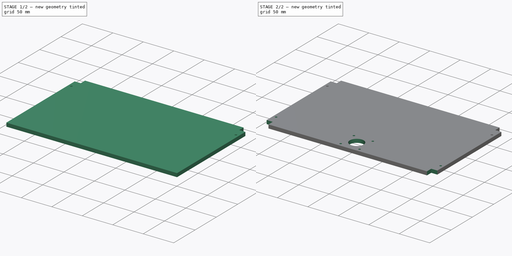
[diagram: build sequence overview — one tinted view per stage of 2, left to right]
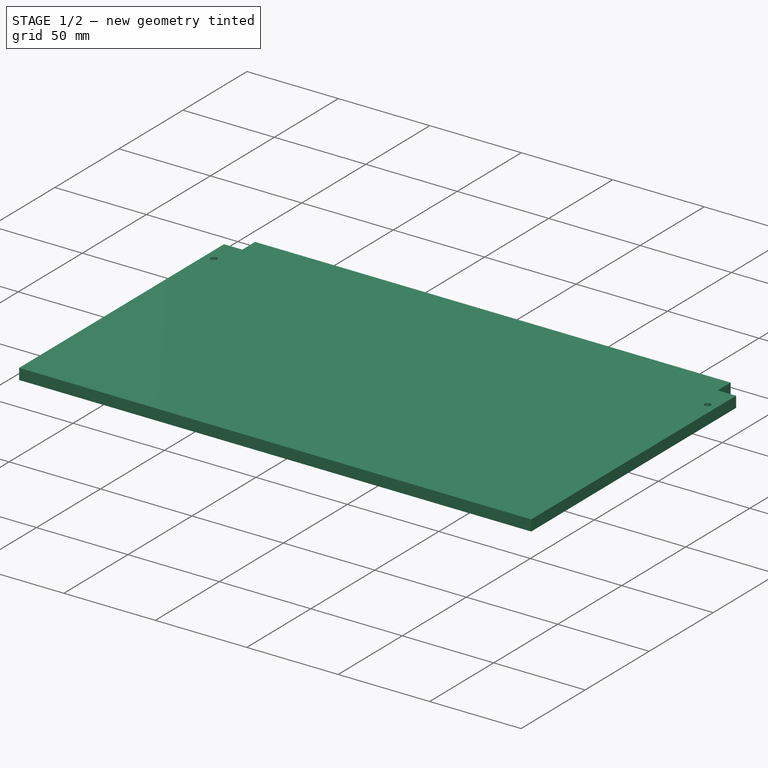
[diagram: stage 1 of 2 — iso view after this stage's code; geometry added in this stage tinted green]
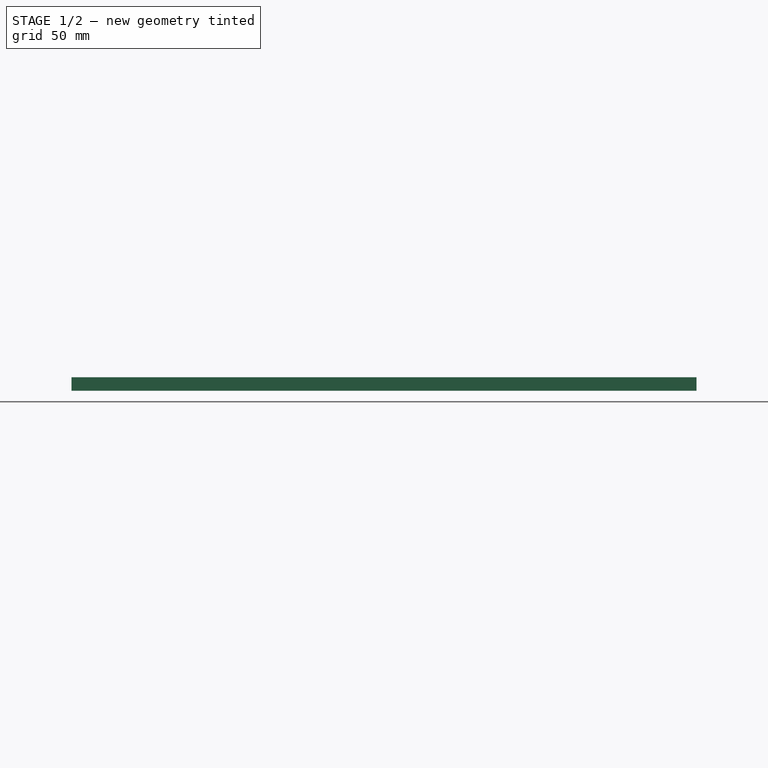
[diagram: stage 1 of 2 — front view after this stage's code; geometry added in this stage tinted green]
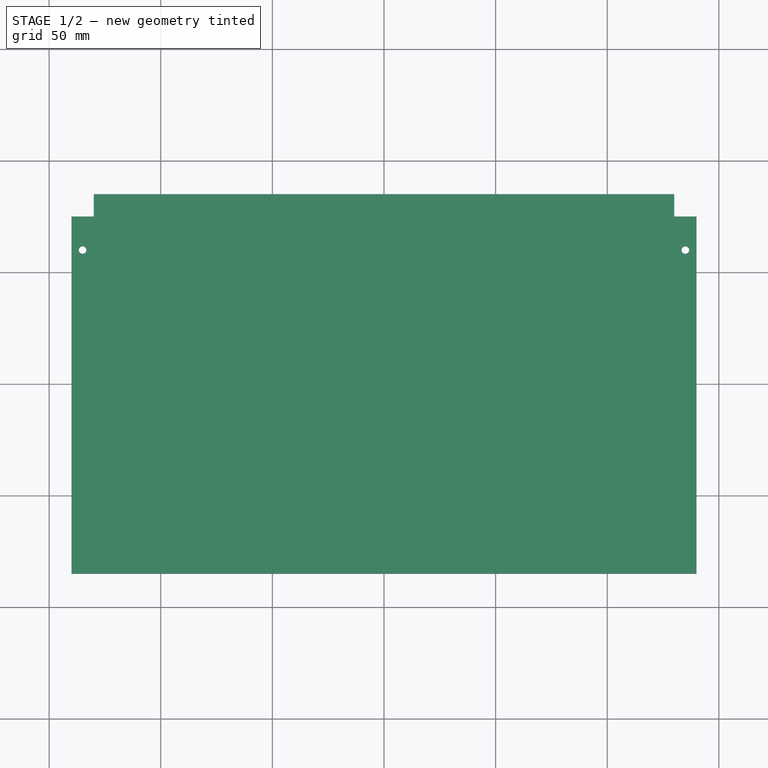
[diagram: stage 1 of 2 — top view after this stage's code; geometry added in this stage tinted green]
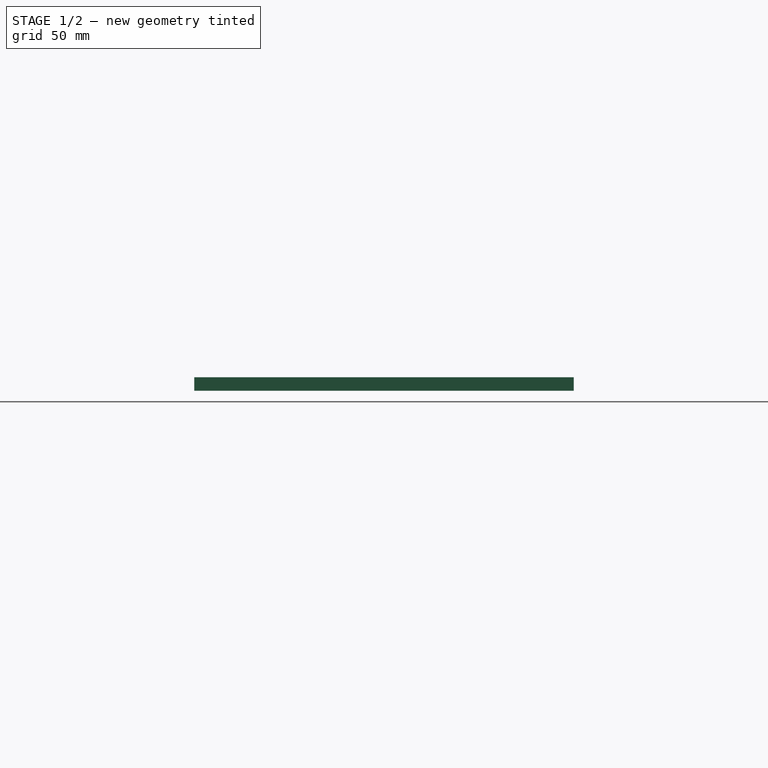
[diagram: stage 1 of 2 — right view after this stage's code; geometry added in this stage tinted green]
FCSTD DOCUMENT  (FreeCAD 0.19R24291 (Git))
Label: Plaque_Mezzanine
License: All rights reserved
LicenseURL: http://en.wikipedia.org/wiki/All_rights_reserved
objects: Sketcher::SketchObject×3, PartDesign::Pocket×2, PartDesign::Pad×1, PartDesign::Mirrored×1, PartDesign::Body×1
note: 11 computed .brp shape members not serialized (recipe doc carries the construction recipe); baked Part::Feature solids carry a one-line shape summary decoded from their .brp

FEATURE [Sketcher::SketchObject] Sketch
  FullyConstrained = true
  MapMode = 5
  Support = -> [XY_Plane]
  sketch-geometry (6):
    g0: LineSegment StartX=-140 StartY=85 StartZ=0 EndX=140 EndY=85 EndZ=0
    g1: LineSegment StartX=140 StartY=85 StartZ=0 EndX=140 EndY=-85 EndZ=0
    g2: LineSegment StartX=140 StartY=-85 StartZ=0 EndX=-140 EndY=-85 EndZ=0
    g3: LineSegment StartX=-140 StartY=-85 StartZ=0 EndX=-140 EndY=85 EndZ=0
    g4: LineSegment StartX=-140 StartY=85 StartZ=0 EndX=140 EndY=-85 EndZ=0
    g5: LineSegment StartX=-140 StartY=-85 StartZ=0 EndX=140 EndY=85 EndZ=0
  constraints (16):
    c: Coincident(g0,g1)
    c: Coincident(g1,g2)
    c: Coincident(g2,g3)
    c: Coincident(g3,g0)
    c: Horizontal(g0)
    c: Horizontal(g2)
    c: Vertical(g1)
    c: Vertical(g3)
    c: Coincident(g4,g0)
    c: Coincident(g4,g1)
    c: Coincident(g5,g2)
    c: Coincident(g5,g0)
    c: PointOnObject(g-1,g5)
    c: PointOnObject(g-1,g4)
    c: DistanceX(g0,g0) = 280
    c: DistanceY(g1,g1) = 170
FEATURE [PartDesign::Pad] Pad  label="Base_Rectangulaire"
  Direction = (1,1,1)
  Length = 6
  Length2 = 100
  Profile = -> Sketch
  Type = 0
FEATURE [Sketcher::SketchObject] Sketch001
  ExternalGeometry = -> [Pad]
  FullyConstrained = true
  MapMode = 5
  Placement = pos=(0,0,6) rot=(0,0,1;0rad)
  Support = -> [Pad]
  sketch-geometry (18):
    g0: LineSegment StartX=-140 StartY=85 StartZ=0 EndX=-130 EndY=85 EndZ=0
    g1: LineSegment StartX=-130 StartY=85 StartZ=0 EndX=-130 EndY=75 EndZ=0
    g2: LineSegment StartX=-130 StartY=75 StartZ=0 EndX=-140 EndY=75 EndZ=0
    g3: LineSegment StartX=-140 StartY=75 StartZ=0 EndX=-140 EndY=85 EndZ=0
    g4: LineSegment StartX=140 StartY=85 StartZ=0 EndX=130 EndY=85 EndZ=0
    g5: LineSegment StartX=130 StartY=85 StartZ=0 EndX=130 EndY=75 EndZ=0
    g6: LineSegment StartX=130 StartY=75 StartZ=0 EndX=140 EndY=75 EndZ=0
    g7: LineSegment StartX=140 StartY=75 StartZ=0 EndX=140 EndY=85 EndZ=0
    g8: LineSegment StartX=-140 StartY=85 StartZ=0 EndX=-130 EndY=75 EndZ=0
    g9: LineSegment StartX=-140 StartY=75 StartZ=0 EndX=-130 EndY=85 EndZ=0
    g10: GeomPoint X=-135 Y=80 Z=0
    g11: LineSegment StartX=-135 StartY=80 StartZ=0 EndX=-135 EndY=60 EndZ=0
    g12: Circle CenterX=-135 CenterY=60 CenterZ=0 NormalX=0 NormalY=0 NormalZ=1 AngleXU=0 Radius=1.7
    g13: LineSegment StartX=130 StartY=85 StartZ=0 EndX=140 EndY=75 EndZ=0
    g14: LineSegment StartX=130 StartY=75 StartZ=0 EndX=140 EndY=85 EndZ=0
    g15: GeomPoint X=135 Y=80 Z=0
    g16: LineSegment StartX=135 StartY=80 StartZ=0 EndX=135 EndY=60 EndZ=0
    g17: Circle CenterX=135 CenterY=60 CenterZ=0 NormalX=0 NormalY=0 NormalZ=1 AngleXU=0 Radius=1.7
  constraints (44):
    c: Coincident(g0,g1)
    c: Coincident(g1,g2)
    c: Coincident(g2,g3)
    c: Coincident(g3,g0)
    c: Horizontal(g0)
    c: Horizontal(g2)
    c: Vertical(g1)
    c: Vertical(g3)
    c: Coincident(g0,g-4)
    c: DistanceX(g0,g0) = 10
    c: Equal(g0,g1)
    c: Coincident(g4,g5)
    c: Coincident(g5,g6)
    c: Coincident(g6,g7)
    c: Coincident(g7,g4)
    c: Horizontal(g4)
    c: Horizontal(g6)
    c: Vertical(g5)
    c: Vertical(g7)
    c: Coincident(g4,g-5)
    c: Equal(g4,g1)
    c: Equal(g5,g4)
    c: Coincident(g8,g0)
    c: Coincident(g8,g1)
    c: Coincident(g9,g2)
    c: Coincident(g9,g0)
    c: PointOnObject(g10,g9)
    c: PointOnObject(g10,g8)
    c: Coincident(g11,g10)
    c: Vertical(g11)
    c: Coincident(g12,g11)
    c: Radius(g12) = 1.7
    c: DistanceY(g12,g10) = 20
    c: Coincident(g13,g4)
    c: Coincident(g13,g6)
    c: Coincident(g14,g5)
    c: Coincident(g14,g4)
    c: PointOnObject(g15,g14)
    c: PointOnObject(g15,g13)
    c: Coincident(g16,g15)
    c: Vertical(g16)
    c: DistanceY(g16,g15) = 20
    c: Coincident(g17,g16)
    c: Equal(g17,g12)
FEATURE [PartDesign::Pocket] Pocket  label="Fixation_MakerBeam"
  BaseFeature = -> Pad
  Length = 5
  Length2 = 100
  Profile = -> Sketch001
  Type = 1
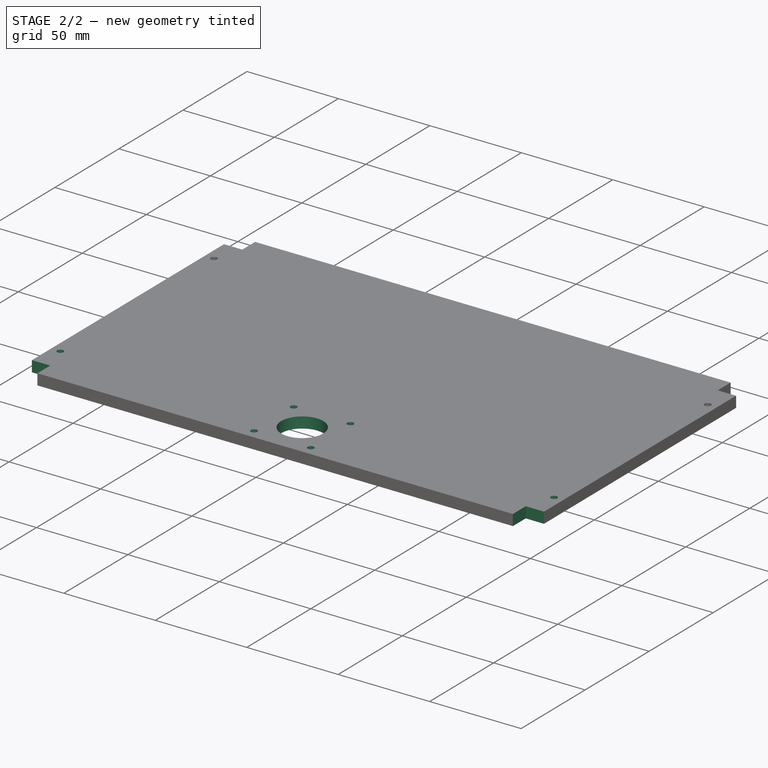
[diagram: stage 2 of 2 — iso view after this stage's code; geometry added in this stage tinted green]
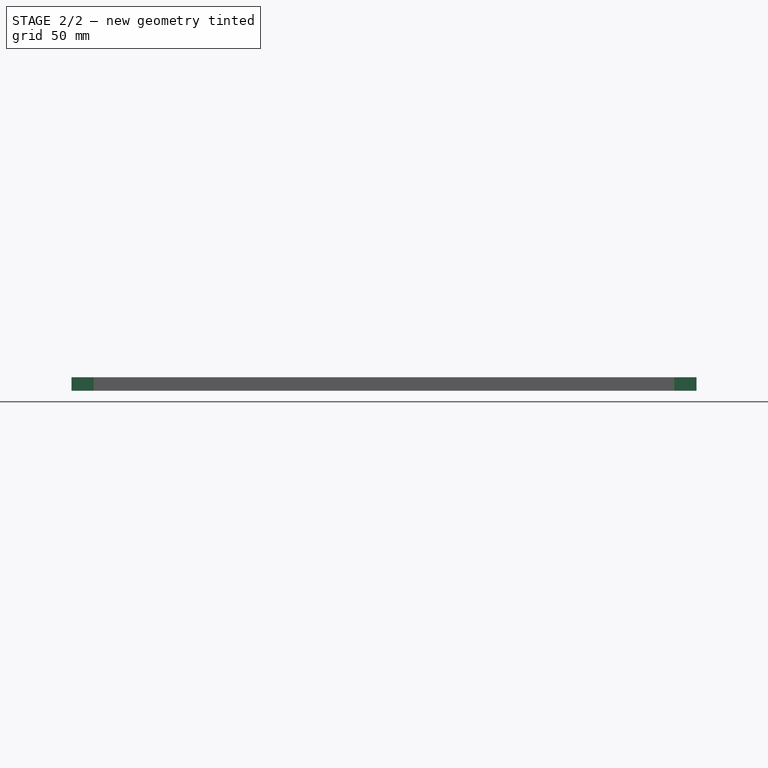
[diagram: stage 2 of 2 — front view after this stage's code; geometry added in this stage tinted green]
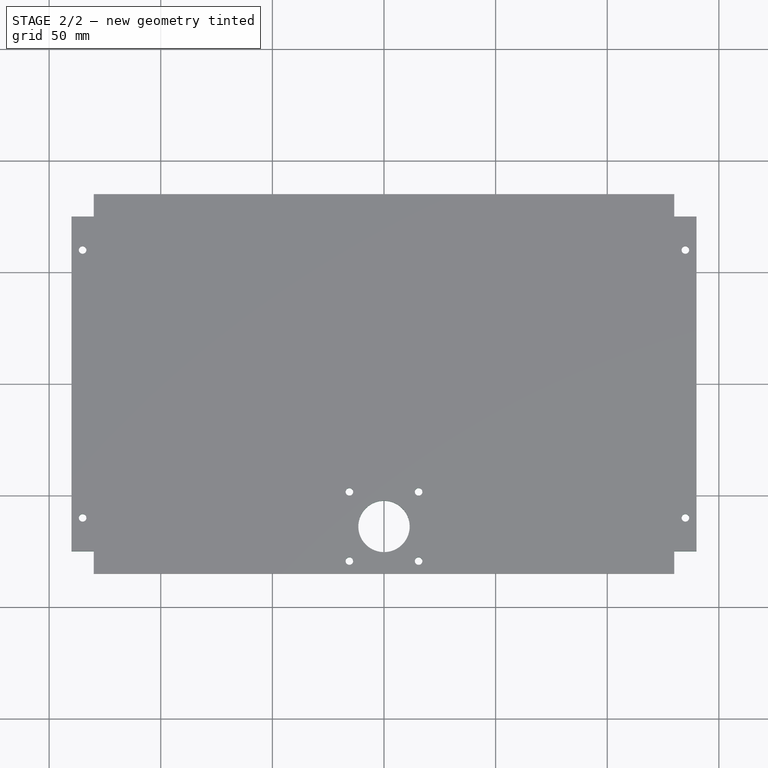
[diagram: stage 2 of 2 — top view after this stage's code; geometry added in this stage tinted green]
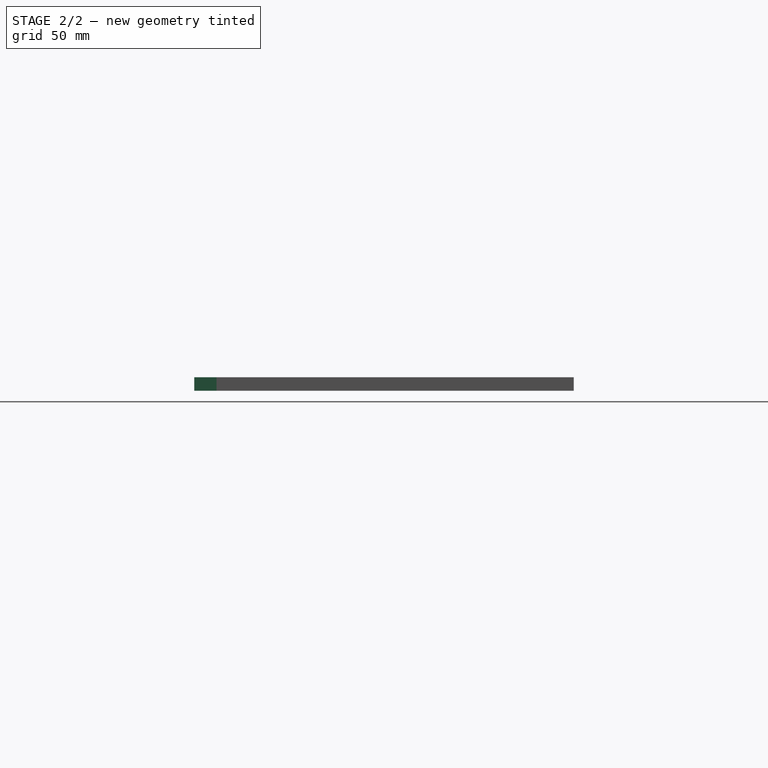
[diagram: stage 2 of 2 — right view after this stage's code; geometry added in this stage tinted green]
FEATURE [PartDesign::Mirrored] Mirrored  label="Fixation_MakerBeam_Miroir"
  BaseFeature = -> Pocket
  MirrorPlane = -> Sketch001 [H_Axis]
  Originals = -> [Pocket]
FEATURE [Sketcher::SketchObject] Sketch002
  ExternalGeometry = -> [Mirrored]
  FullyConstrained = true
  MapMode = 5
  Placement = pos=(0,0,6) rot=(0,0,1;0rad)
  Support = -> [Mirrored]
  sketch-geometry (16):
    g0: LineSegment StartX=-21.15 StartY=-85 StartZ=0 EndX=21.15 EndY=-85 EndZ=0
    g1: LineSegment StartX=21.15 StartY=-85 StartZ=0 EndX=21.15 EndY=-42.7 EndZ=0
    g2: LineSegment StartX=21.15 StartY=-42.7 StartZ=0 EndX=-21.15 EndY=-42.7 EndZ=0
    g3: LineSegment StartX=-21.15 StartY=-42.7 StartZ=0 EndX=-21.15 EndY=-85 EndZ=0
    g4: Circle CenterX=-15.5 CenterY=-48.35 CenterZ=0 NormalX=0 NormalY=0 NormalZ=1 AngleXU=0 Radius=1.7
    g5: LineSegment StartX=-15.5 StartY=-48.35 StartZ=0 EndX=15.5 EndY=-48.35 EndZ=0
    g6: LineSegment StartX=15.5 StartY=-48.35 StartZ=0 EndX=15.5 EndY=-79.35 EndZ=0
    g7: LineSegment StartX=15.5 StartY=-79.35 StartZ=0 EndX=-15.5 EndY=-79.35 EndZ=0
    g8: LineSegment StartX=-15.5 StartY=-79.35 StartZ=0 EndX=-15.5 EndY=-48.35 EndZ=0
    g9: LineSegment StartX=-21.15 StartY=-42.7 StartZ=0 EndX=21.15 EndY=-85 EndZ=0
    g10: LineSegment StartX=-21.15 StartY=-85 StartZ=0 EndX=21.15 EndY=-42.7 EndZ=0
    g11: GeomPoint X=0 Y=-63.85 Z=0
    g12: Circle CenterX=15.5 CenterY=-48.35 CenterZ=0 NormalX=0 NormalY=0 NormalZ=1 AngleXU=0 Radius=1.7
    g13: Circle CenterX=15.5 CenterY=-79.35 CenterZ=0 NormalX=0 NormalY=0 NormalZ=1 AngleXU=0 Radius=1.7
    g14: Circle CenterX=-15.5 CenterY=-79.35 CenterZ=0 NormalX=0 NormalY=0 NormalZ=1 AngleXU=0 Radius=1.7
    g15: Circle CenterX=0 CenterY=-63.85 CenterZ=0 NormalX=0 NormalY=0 NormalZ=1 AngleXU=0 Radius=11.5
  constraints (38):
    c: Coincident(g0,g1)
    c: Coincident(g1,g2)
    c: Coincident(g2,g3)
    c: Coincident(g3,g0)
    c: Horizontal(g0)
    c: Vertical(g1)
    c: Vertical(g3)
    c: PointOnObject(g0,g-3)
    c: Symmetric(g2,g1,g-2)
    c: DistanceX(g0,g0) = 42.3
    c: DistanceY(g3,g3) = 42.3
    c: Radius(g4) = 1.7
    c: Coincident(g5,g6)
    c: Coincident(g6,g7)
    c: Coincident(g7,g8)
    c: Coincident(g8,g5)
    c: Horizontal(g7)
    c: Vertical(g6)
    c: Vertical(g8)
    c: Coincident(g5,g4)
    c: DistanceX(g5,g5) = 31
    c: DistanceY(g8,g8) = 31
    c: Symmetric(g5,g4,g-2)
    c: Coincident(g9,g2)
    c: Coincident(g9,g0)
    c: Coincident(g10,g0)
    c: Coincident(g10,g1)
    c: PointOnObject(g11,g10)
    c: PointOnObject(g11,g9)
    c: PointOnObject(g4,g9)
    c: Coincident(g12,g5)
    c: Coincident(g13,g6)
    c: Coincident(g14,g7)
    c: Equal(g14,g13)
    c: Equal(g13,g12)
    c: Equal(g12,g4)
    c: Coincident(g15,g11)
    c: Radius(g15) = 11.5
FEATURE [PartDesign::Pocket] Pocket001  label="Fixation_NEMA17"
  BaseFeature = -> Mirrored
  Length = 0
  Length2 = 100
  Profile = -> Sketch002
  Type = 1
FEATURE [PartDesign::Body] Body
  Group = -> [Sketch,Pad,Sketch001,Pocket,Mirrored,Sketch002,Pocket001]
  Origin = -> Origin
  Tip = -> Pocket001
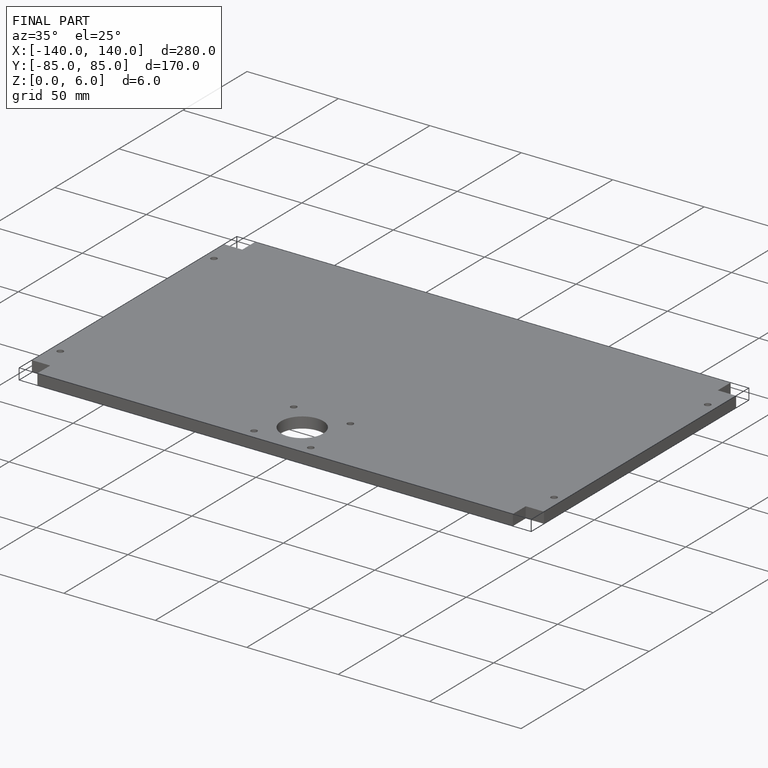
[diagram: finished part — iso view with bounding-box wireframe]
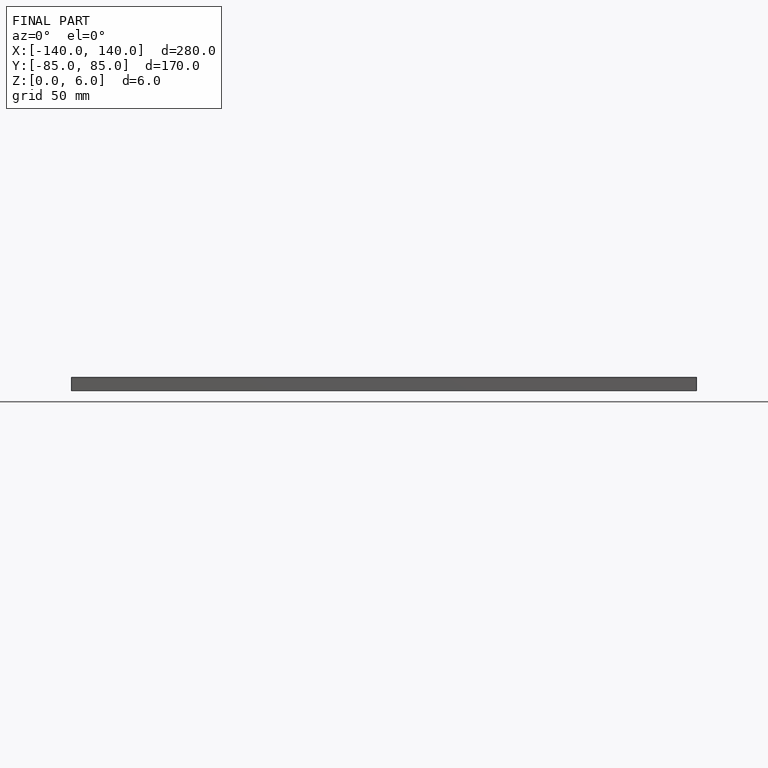
[diagram: finished part — front view with bounding-box wireframe]
